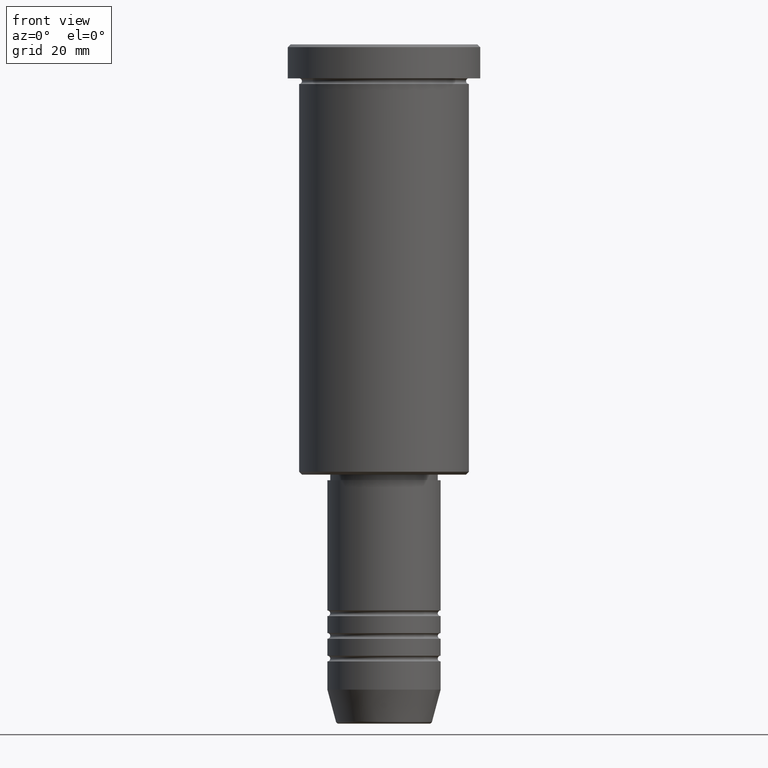
[diagram: clean part render]
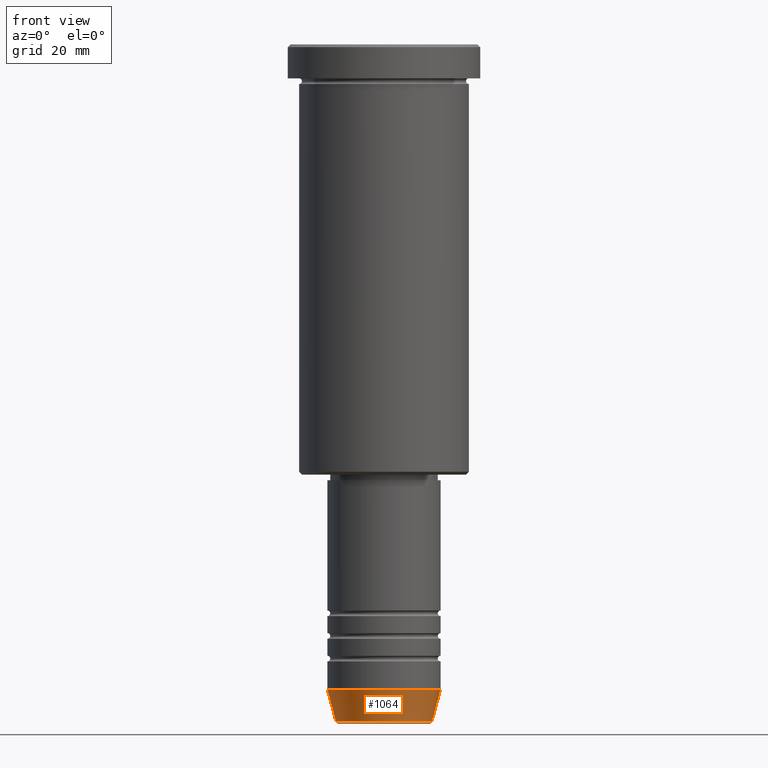
[diagram: same view with one face highlighted and labeled with its STEP entity id]
A machine part, front view. The second image highlights one B-rep face of the part: STEP entity #1064.
In plain terms, the highlighted conical surface has half-angle 15 deg.
Its self-contained STEP definition (entity closure, byte-faithful):
#37 = EDGE_LOOP ( 'NONE', ( #434, #696, #984, #1134 ) ) ;
#54 = VERTEX_POINT ( 'NONE', #313 ) ;
#72 = DIRECTION ( 'NONE',  ( 0.2588190451025214056, 0.000000000000000000, 0.9659258262890680902 ) ) ;
#97 = CARTESIAN_POINT ( 'NONE',  ( -10.00000000000000178, 1.224646799147353454E-15, -113.9999999999999858 ) ) ;
#113 = DIRECTION ( 'NONE',  ( 1.000000000000000000, 0.000000000000000000, 0.000000000000000000 ) ) ;
#140 = DIRECTION ( 'NONE',  ( -0.000000000000000000, -0.000000000000000000, 1.000000000000000000 ) ) ;
#151 = AXIS2_PLACEMENT_3D ( 'NONE', #393, #1105, #113 ) ;
#176 = LINE ( 'NONE', #1099, #294 ) ;
#227 = EDGE_CURVE ( 'NONE', #54, #283, #759, .T. ) ;
#229 = CARTESIAN_POINT ( 'NONE',  ( 0.000000000000000000, 0.000000000000000000, -113.9999999999999858 ) ) ;
#233 = VERTEX_POINT ( 'NONE', #859 ) ;
#283 = VERTEX_POINT ( 'NONE', #384 ) ;
#293 = DIRECTION ( 'NONE',  ( -0.2588190451025214056, 3.169619151431772953E-17, 0.9659258262890680902 ) ) ;
#294 = VECTOR ( 'NONE', #293, 1000.000000000000000 ) ;
#313 = CARTESIAN_POINT ( 'NONE',  ( -8.491604264568312743, 1.132284198685156781E-15, -119.6294095225512564 ) ) ;
#349 = LINE ( 'NONE', #993, #431 ) ;
#384 = CARTESIAN_POINT ( 'NONE',  ( 8.491604264568312743, 0.000000000000000000, -119.6294095225512564 ) ) ;
#392 = CONICAL_SURFACE ( 'NONE', #800, 10.00000000000000178, 0.2617993877991501295 ) ;
#393 = CARTESIAN_POINT ( 'NONE',  ( 0.000000000000000000, 0.000000000000000000, -119.6294095225512564 ) ) ;
#404 = EDGE_CURVE ( 'NONE', #611, #233, #1085, .T. ) ;
#431 = VECTOR ( 'NONE', #72, 1000.000000000000000 ) ;
#434 = ORIENTED_EDGE ( 'NONE', *, *, #1183, .F. ) ;
#522 = DIRECTION ( 'NONE',  ( 1.000000000000000000, 0.000000000000000000, 0.000000000000000000 ) ) ;
#571 = AXIS2_PLACEMENT_3D ( 'NONE', #229, #596, #522 ) ;
#591 = EDGE_CURVE ( 'NONE', #283, #233, #349, .T. ) ;
#596 = DIRECTION ( 'NONE',  ( -0.000000000000000000, -0.000000000000000000, 1.000000000000000000 ) ) ;
#611 = VERTEX_POINT ( 'NONE', #97 ) ;
#696 = ORIENTED_EDGE ( 'NONE', *, *, #227, .T. ) ;
#759 = CIRCLE ( 'NONE', #151, 8.491604264568312743 ) ;
#800 = AXIS2_PLACEMENT_3D ( 'NONE', #845, #140, #1066 ) ;
#830 = FACE_OUTER_BOUND ( 'NONE', #37, .T. ) ;
#845 = CARTESIAN_POINT ( 'NONE',  ( 0.000000000000000000, 0.000000000000000000, -113.9999999999999858 ) ) ;
#859 = CARTESIAN_POINT ( 'NONE',  ( 10.00000000000000178, 0.000000000000000000, -113.9999999999999858 ) ) ;
#984 = ORIENTED_EDGE ( 'NONE', *, *, #591, .T. ) ;
#993 = CARTESIAN_POINT ( 'NONE',  ( 10.00000000000000178, 0.000000000000000000, -113.9999999999999858 ) ) ;
#1064 = ADVANCED_FACE ( 'NONE', ( #830 ), #392, .T. ) ;
#1066 = DIRECTION ( 'NONE',  ( 1.000000000000000000, 0.000000000000000000, 0.000000000000000000 ) ) ;
#1085 = CIRCLE ( 'NONE', #571, 10.00000000000000178 ) ;
#1099 = CARTESIAN_POINT ( 'NONE',  ( -10.00000000000000178, 1.224646799147353454E-15, -113.9999999999999858 ) ) ;
#1105 = DIRECTION ( 'NONE',  ( -0.000000000000000000, -0.000000000000000000, 1.000000000000000000 ) ) ;
#1134 = ORIENTED_EDGE ( 'NONE', *, *, #404, .F. ) ;
#1183 = EDGE_CURVE ( 'NONE', #54, #611, #176, .T. ) ;